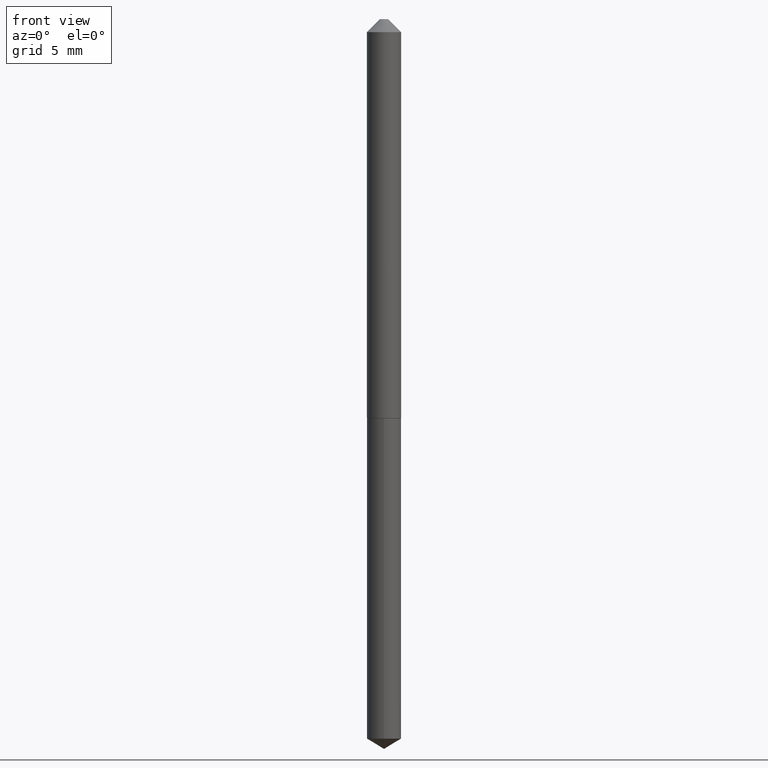
[diagram: clean part render]
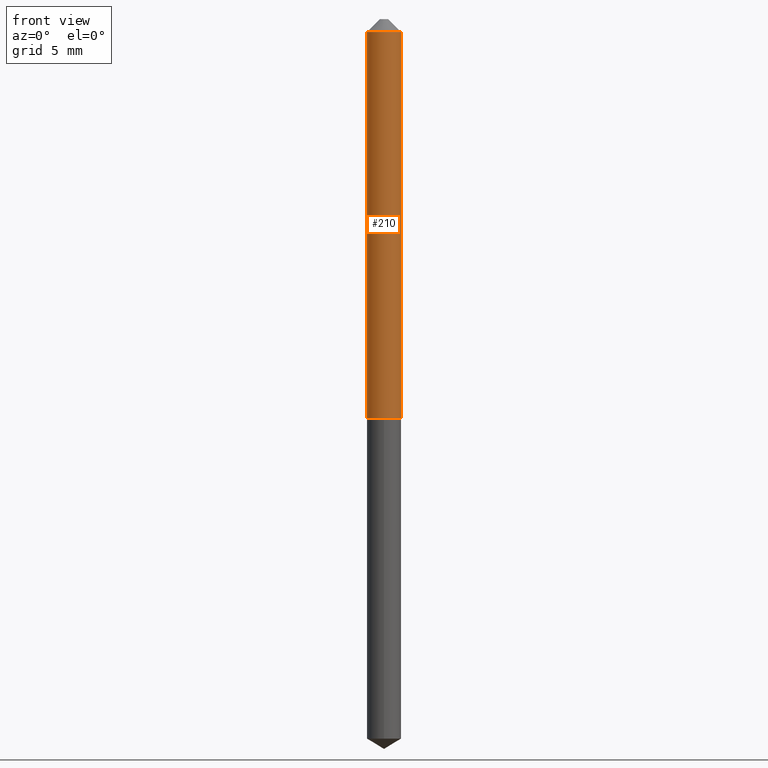
[diagram: same view with one face highlighted and labeled with its STEP entity id]
A machine part, front view. The second image highlights one B-rep face of the part: STEP entity #210.
In plain terms, the highlighted cylindrical surface (edge-blend (fillet) strip) has radius 1.0414 mm, axis along (-0, 0, 1).
Its self-contained STEP definition (entity closure, byte-faithful):
#3 = ORIENTED_EDGE ( 'NONE', *, *, #105, .F. ) ;
#13 = CARTESIAN_POINT ( 'NONE',  ( -0.04100000000000007111, 2.913225216616415815E-16, -2.016763387004515092E-30 ) ) ;
#46 = CARTESIAN_POINT ( 'NONE',  ( 2.339090913116082767E-29, -3.339601900603468461E-15, -0.9564999999999999059 ) ) ;
#69 = ORIENTED_EDGE ( 'NONE', *, *, #138, .F. ) ;
#74 = VECTOR ( 'NONE', #77, 39.37007874015748143 ) ;
#77 = DIRECTION ( 'NONE',  ( -2.445468806185136877E-29, 3.491481338843145188E-15, 1.000000000000000000 ) ) ;
#80 = CARTESIAN_POINT ( 'NONE',  ( 0.04100000000000007111, -2.863014697851374814E-16, 1.999232478076336996E-30 ) ) ;
#81 = DIRECTION ( 'NONE',  ( 1.000000000000000000, -6.982962677686265922E-15, 0.000000000000000000 ) ) ;
#83 = DIRECTION ( 'NONE',  ( -2.445468806185136597E-29, 3.491481338843145583E-15, 1.000000000000000000 ) ) ;
#87 = AXIS2_PLACEMENT_3D ( 'NONE', #46, #117, #81 ) ;
#88 = CARTESIAN_POINT ( 'NONE',  ( 0.04100000000000000866, -3.954102616239860397E-16, -0.03125000000000020123 ) ) ;
#100 = VERTEX_POINT ( 'NONE', #370 ) ;
#102 = VECTOR ( 'NONE', #316, 39.37007874015748143 ) ;
#104 = LINE ( 'NONE', #13, #74 ) ;
#105 = EDGE_CURVE ( 'NONE', #304, #236, #160, .T. ) ;
#106 = DIRECTION ( 'NONE',  ( 1.000000000000000000, -6.982962677686267499E-15, 0.000000000000000000 ) ) ;
#117 = DIRECTION ( 'NONE',  ( -2.445468806185136597E-29, 3.491481338843145583E-15, 1.000000000000000000 ) ) ;
#132 = AXIS2_PLACEMENT_3D ( 'NONE', #340, #338, #106 ) ;
#137 = CYLINDRICAL_SURFACE ( 'NONE', #260, 0.04100000000000007111 ) ;
#138 = EDGE_CURVE ( 'NONE', #299, #304, #104, .T. ) ;
#158 = EDGE_LOOP ( 'NONE', ( #69, #211, #187, #3 ) ) ;
#160 = CIRCLE ( 'NONE', #132, 0.04100000000000000866 ) ;
#187 = ORIENTED_EDGE ( 'NONE', *, *, #281, .T. ) ;
#210 = ADVANCED_FACE ( 'NONE', ( #385 ), #137, .T. ) ;
#211 = ORIENTED_EDGE ( 'NONE', *, *, #298, .T. ) ;
#224 = CARTESIAN_POINT ( 'NONE',  ( -0.04100000000000011968, -3.048279378941826732E-15, -0.9564999999999999059 ) ) ;
#229 = CARTESIAN_POINT ( 'NONE',  ( 0.000000000000000000, 0.000000000000000000, 0.000000000000000000 ) ) ;
#236 = VERTEX_POINT ( 'NONE', #88 ) ;
#260 = AXIS2_PLACEMENT_3D ( 'NONE', #229, #83, #285 ) ;
#281 = EDGE_CURVE ( 'NONE', #100, #236, #319, .T. ) ;
#285 = DIRECTION ( 'NONE',  ( 1.000000000000000000, -6.982962677686268288E-15, 4.876176775795935232E-29 ) ) ;
#298 = EDGE_CURVE ( 'NONE', #299, #100, #375, .T. ) ;
#299 = VERTEX_POINT ( 'NONE', #224 ) ;
#304 = VERTEX_POINT ( 'NONE', #313 ) ;
#313 = CARTESIAN_POINT ( 'NONE',  ( -0.04100000000000000866, -1.433032824559516263E-15, -0.03125000000000020123 ) ) ;
#316 = DIRECTION ( 'NONE',  ( -2.445468806185136877E-29, 3.491481338843145188E-15, 1.000000000000000000 ) ) ;
#319 = LINE ( 'NONE', #80, #102 ) ;
#338 = DIRECTION ( 'NONE',  ( -2.445468806185136597E-29, 3.491481338843145583E-15, 1.000000000000000000 ) ) ;
#340 = CARTESIAN_POINT ( 'NONE',  ( 7.642090019328601786E-31, -1.091087918388490144E-16, -0.03125000000000020123 ) ) ;
#370 = CARTESIAN_POINT ( 'NONE',  ( 0.04100000000000011968, -3.625903370388606485E-15, -0.9564999999999999059 ) ) ;
#375 = CIRCLE ( 'NONE', #87, 0.04100000000000011968 ) ;
#385 = FACE_OUTER_BOUND ( 'NONE', #158, .T. ) ;